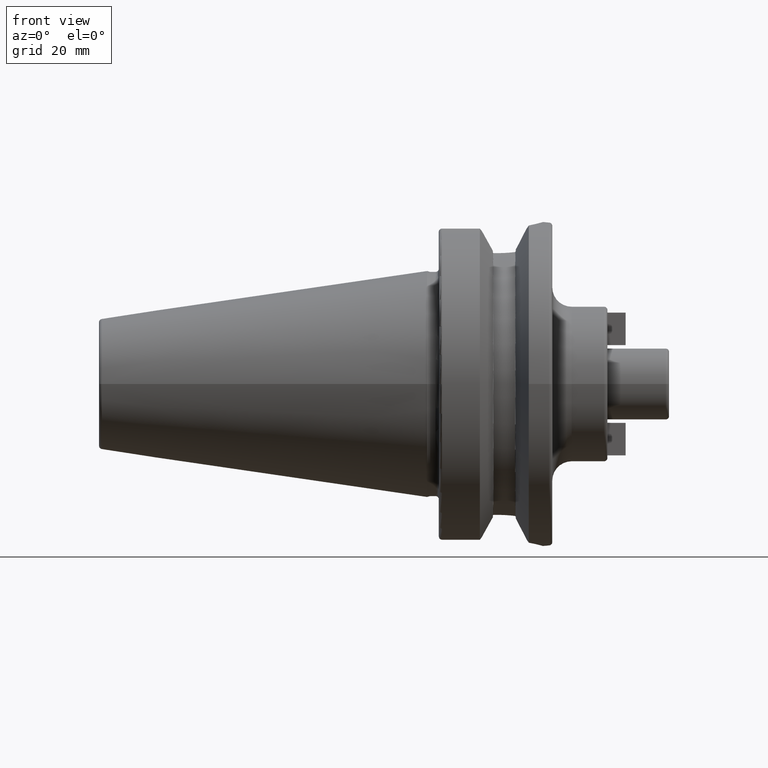
[diagram: clean part render]
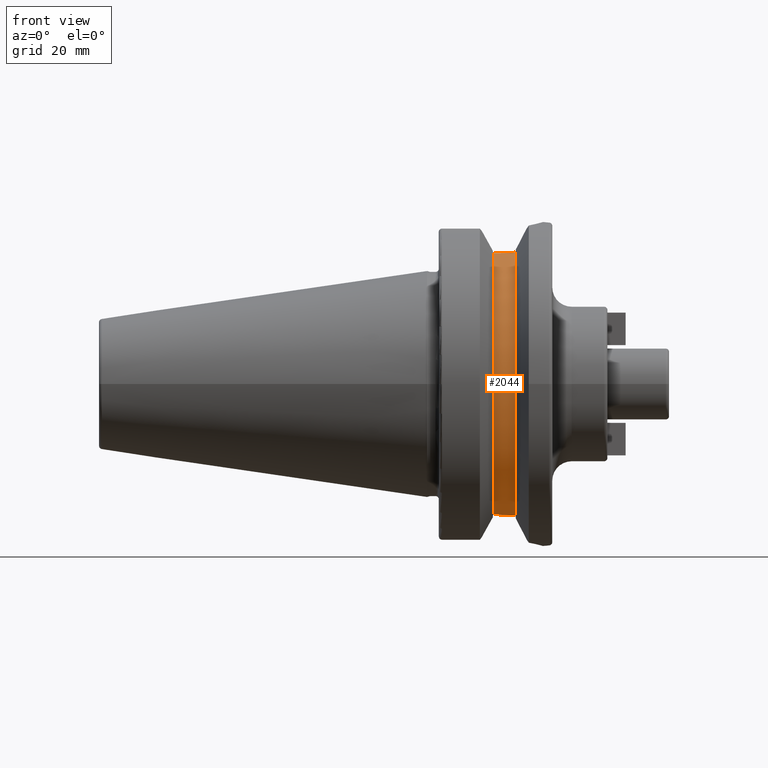
[diagram: same view with one face highlighted and labeled with its STEP entity id]
A machine part, front view. The second image highlights one B-rep face of the part: STEP entity #2044.
In plain terms, the highlighted cylindrical surface (partial cylindrical patch) has radius 42.375 mm, axis along (1, 0, 0).
Its self-contained STEP definition (entity closure, byte-faithful):
#308=DIRECTION('',(1.E0,0.E0,0.E0));
#309=VECTOR('',#308,1.435E0);
#310=CARTESIAN_POINT('',(1.99125E1,-1.29025E1,-4.036293000700E1));
#311=LINE('',#310,#309);
#368=CARTESIAN_POINT('',(2.64875E1,-1.183447955129E1,-4.068888937720E1));
#369=CARTESIAN_POINT('',(2.593767013313E1,-1.207328392824E1,-4.061943244291E1));
#370=CARTESIAN_POINT('',(2.482251458205E1,-1.246756636174E1,-4.050035379603E1));
#371=CARTESIAN_POINT('',(2.309259987910E1,-1.282394305606E1,-4.038817378858E1));
#372=CARTESIAN_POINT('',(2.193211835188E1,-1.29025E1,-4.036293000700E1));
#373=CARTESIAN_POINT('',(2.13475E1,-1.29025E1,-4.036293000700E1));
#375=CARTESIAN_POINT('',(1.99125E1,0.E0,0.E0));
#376=DIRECTION('',(-1.E0,0.E0,0.E0));
#377=DIRECTION('',(0.E0,-3.044837758112E-1,-9.525175222891E-1));
#378=AXIS2_PLACEMENT_3D('',#375,#376,#377);
#380=CARTESIAN_POINT('',(2.13475E1,-1.29025E1,4.036293000700E1));
#381=CARTESIAN_POINT('',(2.193211835188E1,-1.29025E1,4.036293000700E1));
#382=CARTESIAN_POINT('',(2.309259987910E1,-1.282394305606E1,4.038817378858E1));
#383=CARTESIAN_POINT('',(2.482251458205E1,-1.246756636174E1,4.050035379603E1));
#384=CARTESIAN_POINT('',(2.593767013313E1,-1.207328392824E1,4.061943244291E1));
#385=CARTESIAN_POINT('',(2.64875E1,-1.183447955129E1,4.068888937720E1));
#463=CARTESIAN_POINT('',(2.64875E1,0.E0,0.E0));
#464=DIRECTION('',(-1.E0,0.E0,0.E0));
#465=DIRECTION('',(0.E0,-2.792797534229E-1,-9.602097788130E-1));
#466=AXIS2_PLACEMENT_3D('',#463,#464,#465);
#548=DIRECTION('',(1.E0,0.E0,0.E0));
#549=VECTOR('',#548,1.435E0);
#550=CARTESIAN_POINT('',(1.99125E1,-1.29025E1,4.036293000700E1));
#551=LINE('',#550,#549);
#1318=CARTESIAN_POINT('',(1.99125E1,-1.29025E1,-4.036293000700E1));
#1319=CARTESIAN_POINT('',(1.99125E1,-1.29025E1,4.036293000700E1));
#1320=VERTEX_POINT('',#1318);
#1321=VERTEX_POINT('',#1319);
#1330=CARTESIAN_POINT('',(2.64875E1,-1.183447955129E1,-4.068888937720E1));
#1331=CARTESIAN_POINT('',(2.64875E1,-1.183447955129E1,4.068888937720E1));
#1332=VERTEX_POINT('',#1330);
#1333=VERTEX_POINT('',#1331);
#1459=CARTESIAN_POINT('',(2.13475E1,-1.29025E1,4.036293000700E1));
#1460=VERTEX_POINT('',#1459);
#1467=CARTESIAN_POINT('',(2.13475E1,-1.29025E1,-4.036293000700E1));
#1468=VERTEX_POINT('',#1467);
#2027=CARTESIAN_POINT('',(1.491626494021E1,0.E0,0.E0));
#2028=DIRECTION('',(1.E0,0.E0,0.E0));
#2029=DIRECTION('',(0.E0,-1.E0,0.E0));
#2030=AXIS2_PLACEMENT_3D('',#2027,#2028,#2029);
#2031=CYLINDRICAL_SURFACE('',#2030,4.2375E1);
#2033=ORIENTED_EDGE('',*,*,#2032,.T.);
#2034=ORIENTED_EDGE('',*,*,#1966,.F.);
#2035=ORIENTED_EDGE('',*,*,#2000,.T.);
#2037=ORIENTED_EDGE('',*,*,#2036,.T.);
#2039=ORIENTED_EDGE('',*,*,#2038,.T.);
#2041=ORIENTED_EDGE('',*,*,#2040,.F.);
#2042=EDGE_LOOP('',(#2033,#2034,#2035,#2037,#2039,#2041));
#2043=FACE_OUTER_BOUND('',#2042,.F.);
#2044=ADVANCED_FACE('',(#2043),#2031,.T.);
#374=B_SPLINE_CURVE_WITH_KNOTS('',3,(#368,#369,#370,#371,#372,#373),
.UNSPECIFIED.,.F.,.F.,(4,1,1,4),(0.E0,3.333333333333E-1,6.666666666667E-1,1.E0),
.UNSPECIFIED.);
#379=CIRCLE('',#378,4.2375E1);
#386=B_SPLINE_CURVE_WITH_KNOTS('',3,(#380,#381,#382,#383,#384,#385),
.UNSPECIFIED.,.F.,.F.,(4,1,1,4),(0.E0,3.333333333333E-1,6.666666666667E-1,1.E0),
.UNSPECIFIED.);
#467=CIRCLE('',#466,4.2375E1);
#1966=EDGE_CURVE('',#1320,#1468,#311,.T.);
#2000=EDGE_CURVE('',#1320,#1321,#379,.T.);
#2032=EDGE_CURVE('',#1332,#1468,#374,.T.);
#2036=EDGE_CURVE('',#1321,#1460,#551,.T.);
#2038=EDGE_CURVE('',#1460,#1333,#386,.T.);
#2040=EDGE_CURVE('',#1332,#1333,#467,.T.);